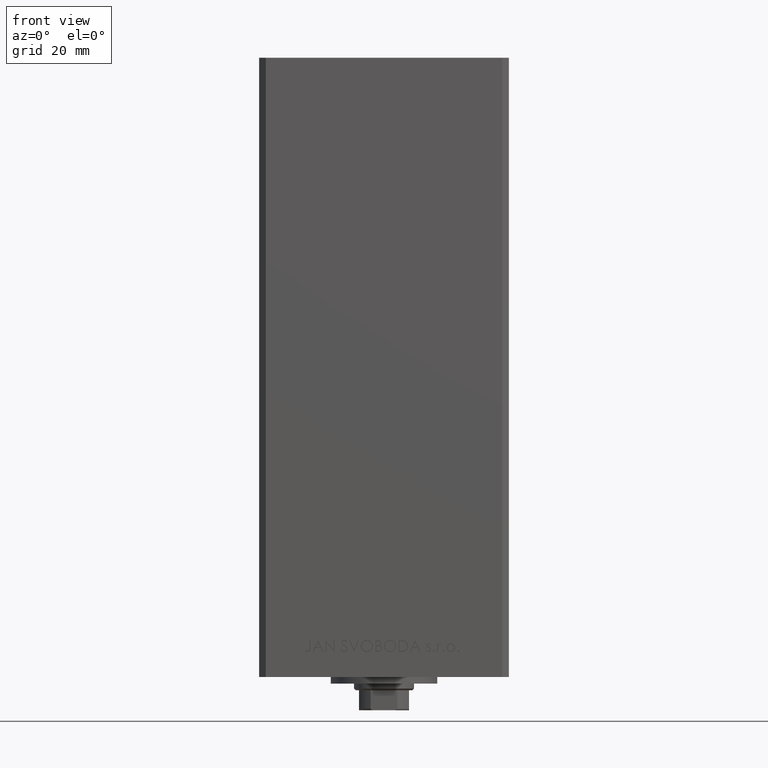
[diagram: clean part render]
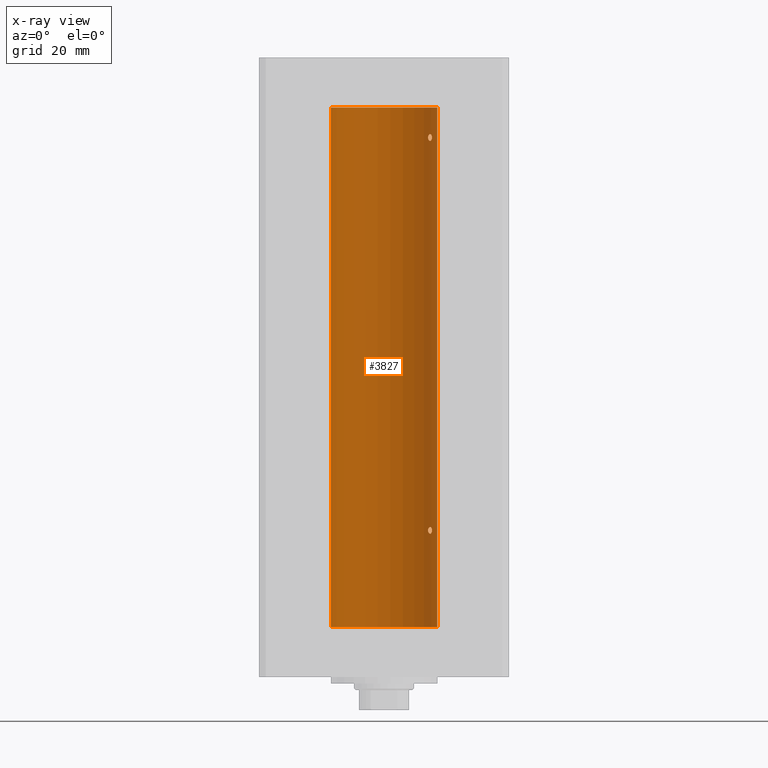
[diagram: x-ray — body ghosted, one internal face saturated and labeled with its STEP entity id]
A machine part, front view, then the same camera in x-ray: the body is ghosted and one INTERNAL B-rep face — a face not visible from any outside direction — is saturated and labeled: STEP entity #3827.
In plain terms, the highlighted cylindrical surface (partial cylindrical patch) has radius 16 mm, axis along (-0, -0, -1).
Its self-contained STEP definition (entity closure, byte-faithful):
#850 = ORIENTED_EDGE ( 'NONE', *, *, #6543, .F. ) ;
#973 = CARTESIAN_POINT ( 'NONE',  ( 14.12440581436492515, 7.519967855344591001, 147.9168456675480172 ) ) ;
#1750 = EDGE_CURVE ( 'NONE', #3633, #21859, #28530, .T. ) ;
#2942 = CARTESIAN_POINT ( 'NONE',  ( 13.70633586603035781, 8.255576010093792050, 146.0253286105015036 ) ) ;
#3022 = CARTESIAN_POINT ( 'NONE',  ( 14.17516445690067961, 7.421373518623910037, 28.17369566554943461 ) ) ;
#3314 = CARTESIAN_POINT ( 'NONE',  ( 13.32447566991144328, 8.857922402414486029, 29.53143811990381096 ) ) ;
#3447 = CARTESIAN_POINT ( 'NONE',  ( 14.17516445690067250, 7.421373518623910037, 146.1736956655494168 ) ) ;
#3569 = CARTESIAN_POINT ( 'NONE',  ( 14.12440581436493048, 7.519967855344575902, 29.91684566754797814 ) ) ;
#3633 = VERTEX_POINT ( 'NONE', #48434 ) ;
#3694 = CARTESIAN_POINT ( 'NONE',  ( 13.98799506618805211, 7.768796316246563194, 146.0189078186198799 ) ) ;
#3827 = ADVANCED_FACE ( 'NONE', ( #31923, #16253, #35175 ), #46912, .F. ) ;
#3960 = ORIENTED_EDGE ( 'NONE', *, *, #13744, .T. ) ;
#5332 = ORIENTED_EDGE ( 'NONE', *, *, #46174, .F. ) ;
#6259 = EDGE_LOOP ( 'NONE', ( #45837, #5332 ) ) ;
#6262 = CARTESIAN_POINT ( 'NONE',  ( 13.22875655532295447, 9.000000000000000000, 28.99999999999998579 ) ) ;
#6543 = EDGE_CURVE ( 'NONE', #21859, #3633, #15138, .T. ) ;
#6665 = CARTESIAN_POINT ( 'NONE',  ( 13.25010819131476048, 8.968783812673557065, 146.7171986622837210 ) ) ;
#6697 = ORIENTED_EDGE ( 'NONE', *, *, #1750, .F. ) ;
#6868 = CARTESIAN_POINT ( 'NONE',  ( 13.22875655532295447, 8.999999999999996447, 146.9999999999999716 ) ) ;
#7396 = VERTEX_POINT ( 'NONE', #22961 ) ;
#7440 = CARTESIAN_POINT ( 'NONE',  ( 13.92009581174527355, 7.889943515799701323, 145.9984609092137759 ) ) ;
#7564 = CARTESIAN_POINT ( 'NONE',  ( 14.38749456993835807, 6.999999999999892530, 29.14110697703746666 ) ) ;
#7796 = CARTESIAN_POINT ( 'NONE',  ( 16.00000000000000000, 1.959434878635765131E-15, 156.0000000000000000 ) ) ;
#7981 = CARTESIAN_POINT ( 'NONE',  ( 14.37260515874679179, 7.030802976542521954, 147.2824317985810865 ) ) ;
#8315 = CARTESIAN_POINT ( 'NONE',  ( 0.000000000000000000, 0.000000000000000000, 156.0000000000000000 ) ) ;
#8376 = CIRCLE ( 'NONE', #14750, 16.00000000000000000 ) ;
#8557 = DIRECTION ( 'NONE',  ( -0.000000000000000000, 0.000000000000000000, 1.000000000000000000 ) ) ;
#9367 = CARTESIAN_POINT ( 'NONE',  ( 0.000000000000000000, 0.000000000000000000, 0.000000000000000000 ) ) ;
#9894 = ORIENTED_EDGE ( 'NONE', *, *, #27746, .T. ) ;
#10073 = CARTESIAN_POINT ( 'NONE',  ( -16.00000000000000000, 0.000000000000000000, 0.000000000000000000 ) ) ;
#10164 = CARTESIAN_POINT ( 'NONE',  ( 14.38749456993875775, 6.999999999998771649, 146.9999999999994600 ) ) ;
#10247 = CARTESIAN_POINT ( 'NONE',  ( 14.38749456993876130, 6.999999999998768097, 28.99999999999945643 ) ) ;
#10572 = VECTOR ( 'NONE', #14949, 1000.000000000000000 ) ;
#10668 = CARTESIAN_POINT ( 'NONE',  ( 14.27574973237574874, 7.225997637813491359, 146.3530782107463608 ) ) ;
#10761 = CARTESIAN_POINT ( 'NONE',  ( 14.11701305531883932, 7.531808851198017685, 28.10736678309067216 ) ) ;
#10795 = CARTESIAN_POINT ( 'NONE',  ( 14.27601081693604357, 7.225489892961961758, 29.64644667498326314 ) ) ;
#11008 = CARTESIAN_POINT ( 'NONE',  ( 13.32443414199768661, 8.857985377928107695, 28.46860583031611469 ) ) ;
#11044 = CARTESIAN_POINT ( 'NONE',  ( 13.70635209652260400, 8.259251269739738888, 29.99610020867286408 ) ) ;
#11177 = CARTESIAN_POINT ( 'NONE',  ( 13.77746685470184929, 8.136441676695655545, 146.0017131429554240 ) ) ;
#12093 = CARTESIAN_POINT ( 'NONE',  ( 13.22875655532295447, 9.000000000000000000, 28.99999999999998579 ) ) ;
#12187 = CARTESIAN_POINT ( 'NONE',  ( 13.55739033881264710, 8.499771822136690247, 147.9029833364132855 ) ) ;
#13455 = EDGE_CURVE ( 'NONE', #13664, #18732, #44106, .T. ) ;
#13664 = VERTEX_POINT ( 'NONE', #6868 ) ;
#13744 = EDGE_CURVE ( 'NONE', #22258, #29805, #38344, .T. ) ;
#14235 = CARTESIAN_POINT ( 'NONE',  ( 14.38749456993829234, 7.000000000000027534, 28.92929110951874350 ) ) ;
#14526 = CARTESIAN_POINT ( 'NONE',  ( 13.98853479819182866, 7.771757428685177160, 30.00365939203465615 ) ) ;
#14749 = CARTESIAN_POINT ( 'NONE',  ( 14.35867515080208179, 7.058999333127633058, 28.65442119853812741 ) ) ;
#14750 = AXIS2_PLACEMENT_3D ( 'NONE', #9367, #24553, #17805 ) ;
#14949 = DIRECTION ( 'NONE',  ( -0.000000000000000000, -0.000000000000000000, -1.000000000000000000 ) ) ;
#14994 = CARTESIAN_POINT ( 'NONE',  ( 13.70633586603034892, 8.255576010093809813, 28.02532861050148583 ) ) ;
#15138 = B_SPLINE_CURVE_WITH_KNOTS ( 'NONE', 3,
 ( #6262, #37664, #22462, #11008, #29175, #29675, #21958, #14994, #48387, #25437, #33149, #10761, #3022, #48642, #44395, #14749, #40654, #18215, #14235, #10247 ),
 .UNSPECIFIED., .F., .F.,
 ( 4, 2, 2, 2, 2, 2, 2, 2, 2, 4 ),
 ( 0.000000000000000000, 0.0004221896201403067882, 0.0008443792402806135763, 0.001266568860420920310, 0.001688758480561227153, 0.002110948100701533995, 0.002533137720841840621, 0.002955327340982147246, 0.003166422151052296872, 0.003377516961122446065 ),
 .UNSPECIFIED. ) ;
#15697 = CARTESIAN_POINT ( 'NONE',  ( 13.70635209652259334, 8.259251269739747769, 147.9961002086728570 ) ) ;
#16177 = CARTESIAN_POINT ( 'NONE',  ( 13.32447566991143617, 8.857922402414489582, 147.5314381199037825 ) ) ;
#16253 = FACE_BOUND ( 'NONE', #6259, .T. ) ;
#17796 = AXIS2_PLACEMENT_3D ( 'NONE', #8315, #8557, #23743 ) ;
#17805 = DIRECTION ( 'NONE',  ( 1.000000000000000000, 0.000000000000000000, 0.000000000000000000 ) ) ;
#17880 = CARTESIAN_POINT ( 'NONE',  ( 13.49787029139622696, 8.591848682073997878, 146.1838145871425354 ) ) ;
#18215 = CARTESIAN_POINT ( 'NONE',  ( 14.38374727663543240, 7.007716049903073063, 28.85760792943647246 ) ) ;
#18630 = CARTESIAN_POINT ( 'NONE',  ( 14.11701305531884465, 7.531808851198014132, 146.1073667830907254 ) ) ;
#18732 = VERTEX_POINT ( 'NONE', #35439 ) ;
#18881 = CARTESIAN_POINT ( 'NONE',  ( 14.31615587311060978, 7.145052533203036127, 146.4626987052745619 ) ) ;
#19386 = ORIENTED_EDGE ( 'NONE', *, *, #19551, .F. ) ;
#19423 = CARTESIAN_POINT ( 'NONE',  ( 13.37722806521492203, 8.778496895713763237, 147.6404922157021247 ) ) ;
#19551 = EDGE_CURVE ( 'NONE', #7396, #29805, #8376, .T. ) ;
#21859 = VERTEX_POINT ( 'NONE', #12093 ) ;
#21871 = CARTESIAN_POINT ( 'NONE',  ( 13.56526576050684518, 8.485384079562161119, 146.1169905381311196 ) ) ;
#21958 = CARTESIAN_POINT ( 'NONE',  ( 13.56526576050683808, 8.485384079562180659, 28.11699053813110538 ) ) ;
#22134 = EDGE_LOOP ( 'NONE', ( #850, #6697 ) ) ;
#22258 = VERTEX_POINT ( 'NONE', #26431 ) ;
#22462 = CARTESIAN_POINT ( 'NONE',  ( 13.25010819131475337, 8.968783812673569500, 28.71719866228372453 ) ) ;
#22623 = CARTESIAN_POINT ( 'NONE',  ( 14.36932461189096877, 7.037242368448795915, 146.7207139776694476 ) ) ;
#22746 = CARTESIAN_POINT ( 'NONE',  ( 14.37260515874679179, 7.030802976542517513, 29.28243179858109713 ) ) ;
#22961 = CARTESIAN_POINT ( 'NONE',  ( 16.00000000000000000, 1.959434878635765131E-15, 0.000000000000000000 ) ) ;
#23165 = CARTESIAN_POINT ( 'NONE',  ( 14.31678893103185679, 7.143775209822727845, 147.5347800480706439 ) ) ;
#23405 = CARTESIAN_POINT ( 'NONE',  ( 14.27601081693604179, 7.225489892961972416, 147.6464466749832809 ) ) ;
#23743 = DIRECTION ( 'NONE',  ( 1.000000000000000000, 0.000000000000000000, 0.000000000000000000 ) ) ;
#24553 = DIRECTION ( 'NONE',  ( -0.000000000000000000, 0.000000000000000000, 1.000000000000000000 ) ) ;
#24693 = CARTESIAN_POINT ( 'NONE',  ( 0.000000000000000000, 0.000000000000000000, 156.0000000000000000 ) ) ;
#25437 = CARTESIAN_POINT ( 'NONE',  ( 13.92009581174527355, 7.889943515799717311, 27.99846090921380082 ) ) ;
#26431 = CARTESIAN_POINT ( 'NONE',  ( -16.00000000000000000, 0.000000000000000000, 156.0000000000000000 ) ) ;
#26474 = B_SPLINE_CURVE_WITH_KNOTS ( 'NONE', 3,
 ( #42113, #42354, #7981, #23165, #23405, #973, #46353, #15697, #12187, #19423, #16177, #42597, #31361, #38360 ),
 .UNSPECIFIED., .F., .F.,
 ( 4, 2, 2, 2, 2, 2, 4 ),
 ( 0.003377516961122441295, 0.003798778705083836419, 0.004220040449045231977, 0.005062563936968072532, 0.005905087424890913088, 0.006326349168852335100, 0.006747610912813756245 ),
 .UNSPECIFIED. ) ;
#26714 = CARTESIAN_POINT ( 'NONE',  ( 13.37722806521492203, 8.778496895713761461, 29.64049221570213533 ) ) ;
#27679 = DIRECTION ( 'NONE',  ( -1.000000000000000000, 0.000000000000000000, 0.000000000000000000 ) ) ;
#27746 = EDGE_CURVE ( 'NONE', #37143, #22258, #34485, .T. ) ;
#28530 = B_SPLINE_CURVE_WITH_KNOTS ( 'NONE', 3,
 ( #48675, #7564, #22746, #33949, #10795, #3569, #14526, #11044, #30459, #26714, #3314, #30701, #45440, #41692 ),
 .UNSPECIFIED., .F., .F.,
 ( 4, 2, 2, 2, 2, 2, 4 ),
 ( 0.003377516961122446065, 0.003798778705083856802, 0.004220040449045267539, 0.005062563936968095951, 0.005905087424890924364, 0.006326349168852335100, 0.006747610912813744102 ),
 .UNSPECIFIED. ) ;
#29175 = CARTESIAN_POINT ( 'NONE',  ( 13.37714181818049219, 8.778635597591467388, 28.35955476674628173 ) ) ;
#29675 = CARTESIAN_POINT ( 'NONE',  ( 13.49787029139620564, 8.591848682074017418, 28.18381458714255317 ) ) ;
#29805 = VERTEX_POINT ( 'NONE', #10073 ) ;
#30459 = CARTESIAN_POINT ( 'NONE',  ( 13.55739033881264710, 8.499771822136690247, 29.90298333641328199 ) ) ;
#30701 = CARTESIAN_POINT ( 'NONE',  ( 13.25022586032984329, 8.968609469449804195, 29.28328963896289849 ) ) ;
#31192 = EDGE_CURVE ( 'NONE', #37143, #7396, #45425, .T. ) ;
#31361 = CARTESIAN_POINT ( 'NONE',  ( 13.22875655532295092, 8.999999999999994671, 147.1426595155012649 ) ) ;
#31923 = FACE_OUTER_BOUND ( 'NONE', #34358, .T. ) ;
#33149 = CARTESIAN_POINT ( 'NONE',  ( 13.98799506618804855, 7.768796316246571187, 28.01890781861985502 ) ) ;
#33357 = CARTESIAN_POINT ( 'NONE',  ( 16.00000000000000000, 1.959434878635765131E-15, 156.0000000000000000 ) ) ;
#33826 = CARTESIAN_POINT ( 'NONE',  ( 14.35867515080208712, 7.058999333127631282, 146.6544211985381310 ) ) ;
#33949 = CARTESIAN_POINT ( 'NONE',  ( 14.31678893103186034, 7.143775209822724293, 29.53478004807066526 ) ) ;
#34358 = EDGE_LOOP ( 'NONE', ( #43939, #9894, #3960, #19386 ) ) ;
#34485 = CIRCLE ( 'NONE', #17796, 16.00000000000000000 ) ;
#34593 = CARTESIAN_POINT ( 'NONE',  ( -16.00000000000000000, 0.000000000000000000, 156.0000000000000000 ) ) ;
#35175 = FACE_BOUND ( 'NONE', #22134, .T. ) ;
#35439 = CARTESIAN_POINT ( 'NONE',  ( 14.38749456993875775, 6.999999999998771649, 146.9999999999994600 ) ) ;
#36593 = AXIS2_PLACEMENT_3D ( 'NONE', #24693, #39411, #27679 ) ;
#37065 = CARTESIAN_POINT ( 'NONE',  ( 13.32443414199769194, 8.857985377928093484, 146.4686058303161360 ) ) ;
#37143 = VERTEX_POINT ( 'NONE', #33357 ) ;
#37576 = CARTESIAN_POINT ( 'NONE',  ( 13.22875655532295447, 8.999999999999996447, 146.9999999999999716 ) ) ;
#37664 = CARTESIAN_POINT ( 'NONE',  ( 13.22875655532295625, 9.000000000000003553, 28.85702626093571510 ) ) ;
#37826 = CARTESIAN_POINT ( 'NONE',  ( 14.38749456993829057, 7.000000000000029310, 146.9292911095188003 ) ) ;
#38344 = LINE ( 'NONE', #34593, #10572 ) ;
#38360 = CARTESIAN_POINT ( 'NONE',  ( 13.22875655532295447, 8.999999999999996447, 146.9999999999999716 ) ) ;
#39411 = DIRECTION ( 'NONE',  ( -0.000000000000000000, -0.000000000000000000, -1.000000000000000000 ) ) ;
#40176 = VECTOR ( 'NONE', #49168, 1000.000000000000000 ) ;
#40654 = CARTESIAN_POINT ( 'NONE',  ( 14.36932461189097054, 7.037242368448793250, 28.72071397766941558 ) ) ;
#41692 = CARTESIAN_POINT ( 'NONE',  ( 13.22875655532295447, 9.000000000000000000, 28.99999999999998579 ) ) ;
#42113 = CARTESIAN_POINT ( 'NONE',  ( 14.38749456993875775, 6.999999999998771649, 146.9999999999994600 ) ) ;
#42354 = CARTESIAN_POINT ( 'NONE',  ( 14.38749456993835807, 6.999999999999900524, 147.1411069770374809 ) ) ;
#42597 = CARTESIAN_POINT ( 'NONE',  ( 13.25022586032983618, 8.968609469449805971, 147.2832896389628843 ) ) ;
#43939 = ORIENTED_EDGE ( 'NONE', *, *, #31192, .F. ) ;
#44106 = B_SPLINE_CURVE_WITH_KNOTS ( 'NONE', 3,
 ( #37576, #48306, #6665, #37065, #48802, #17880, #21871, #2942, #11177, #7440, #3694, #18630, #3447, #10668, #18881, #33826, #22623, #44317, #37826, #10164 ),
 .UNSPECIFIED., .F., .F.,
 ( 4, 2, 2, 2, 2, 2, 2, 2, 2, 4 ),
 ( 2.818592028051833686E-17, 0.0004221896201403299359, 0.0008443792402806316825, 0.001266568860420933538, 0.001688758480561235176, 0.002110948100701536597, 0.002533137720841838886, 0.002955327340982140307, 0.003166422151052290801, 0.003377516961122441295 ),
 .UNSPECIFIED. ) ;
#44317 = CARTESIAN_POINT ( 'NONE',  ( 14.38374727663542707, 7.007716049903077504, 146.8576079294365115 ) ) ;
#44395 = CARTESIAN_POINT ( 'NONE',  ( 14.31615587311060445, 7.145052533203041456, 28.46269870527451573 ) ) ;
#45425 = LINE ( 'NONE', #7796, #40176 ) ;
#45440 = CARTESIAN_POINT ( 'NONE',  ( 13.22875655532295625, 9.000000000000001776, 29.14265951550129330 ) ) ;
#45837 = ORIENTED_EDGE ( 'NONE', *, *, #13455, .F. ) ;
#46174 = EDGE_CURVE ( 'NONE', #18732, #13664, #26474, .T. ) ;
#46353 = CARTESIAN_POINT ( 'NONE',  ( 13.98853479819182866, 7.771757428685186042, 148.0036593920346775 ) ) ;
#46912 = CYLINDRICAL_SURFACE ( 'NONE', #36593, 16.00000000000000000 ) ;
#48306 = CARTESIAN_POINT ( 'NONE',  ( 13.22875655532295802, 8.999999999999998224, 146.8570262609357542 ) ) ;
#48387 = CARTESIAN_POINT ( 'NONE',  ( 13.77746685470184040, 8.136441676695671532, 28.00171314295545955 ) ) ;
#48434 = CARTESIAN_POINT ( 'NONE',  ( 14.38749456993876130, 6.999999999998768097, 28.99999999999945643 ) ) ;
#48642 = CARTESIAN_POINT ( 'NONE',  ( 14.27574973237574874, 7.225997637813490471, 28.35307821074632528 ) ) ;
#48675 = CARTESIAN_POINT ( 'NONE',  ( 14.38749456993876130, 6.999999999998768097, 28.99999999999945643 ) ) ;
#48802 = CARTESIAN_POINT ( 'NONE',  ( 13.37714181818050641, 8.778635597591444295, 146.3595547667462995 ) ) ;
#49168 = DIRECTION ( 'NONE',  ( -0.000000000000000000, -0.000000000000000000, -1.000000000000000000 ) ) ;